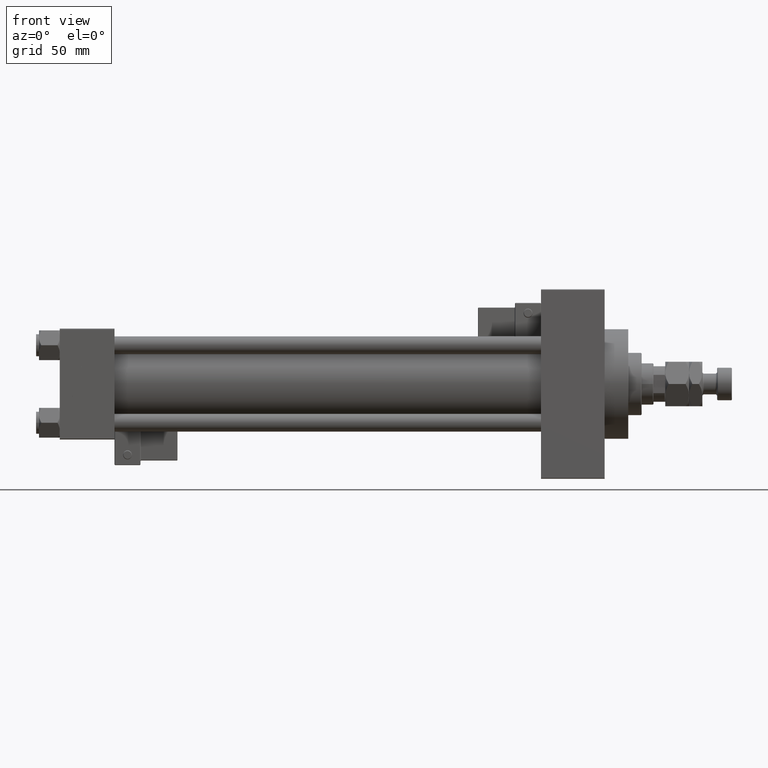
[diagram: clean part render]
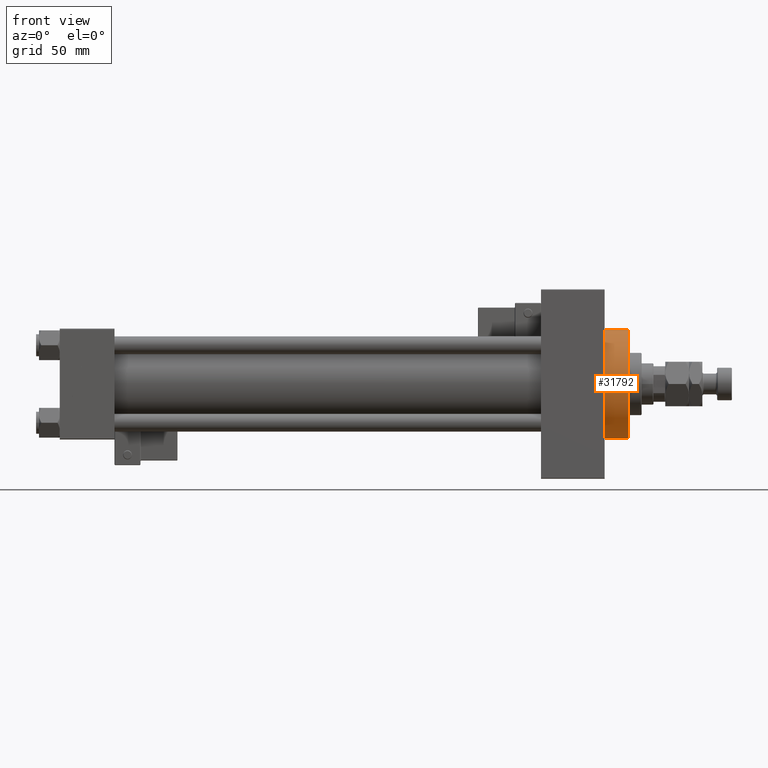
[diagram: same view with one face highlighted and labeled with its STEP entity id]
A machine part, front view. The second image highlights one B-rep face of the part: STEP entity #31792.
In plain terms, the highlighted cylindrical surface (partial cylindrical patch) has radius 37 mm, axis along (-1, -0, -0).
Its self-contained STEP definition (entity closure, byte-faithful):
#1382 = VECTOR ( 'NONE', #17123, 1000.000000000000000 ) ;
#1450 = DIRECTION ( 'NONE',  ( 0.000000000000000000, 0.000000000000000000, -1.000000000000000000 ) ) ;
#1941 = CARTESIAN_POINT ( 'NONE',  ( 383.9999999999999432, 0.000000000000000000, 37.00000000000000000 ) ) ;
#3923 = EDGE_CURVE ( 'NONE', #16003, #12314, #32063, .T. ) ;
#4366 = CARTESIAN_POINT ( 'NONE',  ( 383.9999999999999432, 4.531193156845206793E-15, -37.00000000000000000 ) ) ;
#4611 = AXIS2_PLACEMENT_3D ( 'NONE', #50379, #46076, #1450 ) ;
#4648 = LINE ( 'NONE', #4366, #27350 ) ;
#5281 = CARTESIAN_POINT ( 'NONE',  ( 383.9999999999999432, 0.000000000000000000, 37.00000000000000000 ) ) ;
#6773 = DIRECTION ( 'NONE',  ( -1.000000000000000000, -0.000000000000000000, -0.000000000000000000 ) ) ;
#12299 = EDGE_CURVE ( 'NONE', #14898, #16003, #42106, .T. ) ;
#12314 = VERTEX_POINT ( 'NONE', #25178 ) ;
#14638 = DIRECTION ( 'NONE',  ( 0.000000000000000000, 0.000000000000000000, -1.000000000000000000 ) ) ;
#14898 = VERTEX_POINT ( 'NONE', #1941 ) ;
#15194 = ORIENTED_EDGE ( 'NONE', *, *, #12299, .T. ) ;
#16003 = VERTEX_POINT ( 'NONE', #26359 ) ;
#16566 = ORIENTED_EDGE ( 'NONE', *, *, #17664, .F. ) ;
#17123 = DIRECTION ( 'NONE',  ( -1.000000000000000000, -0.000000000000000000, -0.000000000000000000 ) ) ;
#17664 = EDGE_CURVE ( 'NONE', #19133, #12314, #4648, .T. ) ;
#19133 = VERTEX_POINT ( 'NONE', #26014 ) ;
#22394 = DIRECTION ( 'NONE',  ( 0.000000000000000000, 0.000000000000000000, 1.000000000000000000 ) ) ;
#25178 = CARTESIAN_POINT ( 'NONE',  ( 367.9999999999999432, 4.531193156845206793E-15, -37.00000000000000000 ) ) ;
#26014 = CARTESIAN_POINT ( 'NONE',  ( 383.9999999999999432, 4.531193156845206793E-15, -37.00000000000000000 ) ) ;
#26359 = CARTESIAN_POINT ( 'NONE',  ( 367.9999999999999432, 0.000000000000000000, 37.00000000000000000 ) ) ;
#27350 = VECTOR ( 'NONE', #37716, 1000.000000000000000 ) ;
#29384 = AXIS2_PLACEMENT_3D ( 'NONE', #51675, #6773, #22394 ) ;
#30290 = CIRCLE ( 'NONE', #50019, 37.00000000000000000 ) ;
#30717 = CYLINDRICAL_SURFACE ( 'NONE', #29384, 37.00000000000000000 ) ;
#31792 = ADVANCED_FACE ( 'NONE', ( #43605 ), #30717, .T. ) ;
#32063 = CIRCLE ( 'NONE', #4611, 37.00000000000000000 ) ;
#36151 = EDGE_CURVE ( 'NONE', #14898, #19133, #30290, .T. ) ;
#37716 = DIRECTION ( 'NONE',  ( -1.000000000000000000, -0.000000000000000000, -0.000000000000000000 ) ) ;
#38329 = CARTESIAN_POINT ( 'NONE',  ( 383.9999999999999432, 0.000000000000000000, 0.000000000000000000 ) ) ;
#40144 = EDGE_LOOP ( 'NONE', ( #16566, #52998, #15194, #45362 ) ) ;
#42106 = LINE ( 'NONE', #5281, #1382 ) ;
#43605 = FACE_OUTER_BOUND ( 'NONE', #40144, .T. ) ;
#45362 = ORIENTED_EDGE ( 'NONE', *, *, #3923, .T. ) ;
#46076 = DIRECTION ( 'NONE',  ( 1.000000000000000000, 0.000000000000000000, 0.000000000000000000 ) ) ;
#50019 = AXIS2_PLACEMENT_3D ( 'NONE', #38329, #50951, #14638 ) ;
#50379 = CARTESIAN_POINT ( 'NONE',  ( 367.9999999999999432, 0.000000000000000000, 0.000000000000000000 ) ) ;
#50951 = DIRECTION ( 'NONE',  ( 1.000000000000000000, 0.000000000000000000, 0.000000000000000000 ) ) ;
#51675 = CARTESIAN_POINT ( 'NONE',  ( 383.9999999999999432, 0.000000000000000000, 0.000000000000000000 ) ) ;
#52998 = ORIENTED_EDGE ( 'NONE', *, *, #36151, .F. ) ;